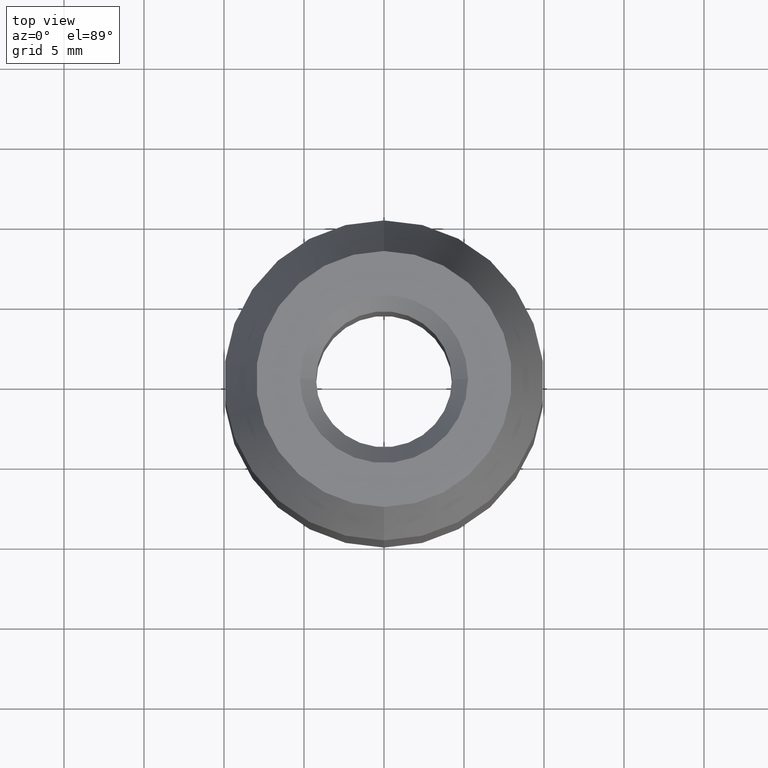
[diagram: clean part render]
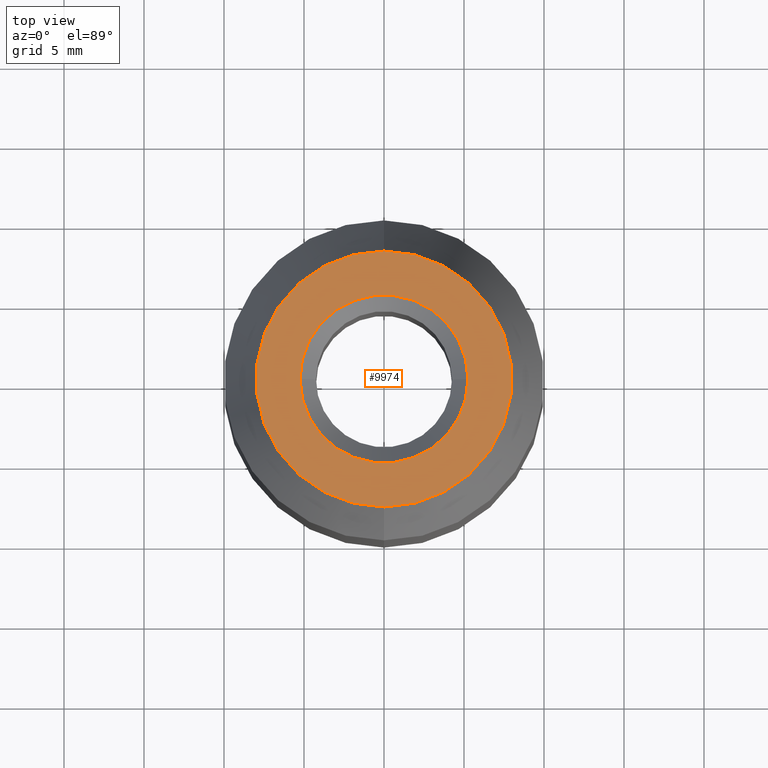
[diagram: same view with one face highlighted and labeled with its STEP entity id]
A machine part, top view. The second image highlights one B-rep face of the part: STEP entity #9974.
In plain terms, the highlighted planar face has unit normal (0, 0, -1).
Its self-contained STEP definition (entity closure, byte-faithful):
#58 = EDGE_LOOP ( 'NONE', ( #6355, #7590 ) ) ;
#657 = ORIENTED_EDGE ( 'NONE', *, *, #5404, .T. ) ;
#922 = EDGE_LOOP ( 'NONE', ( #657, #7589 ) ) ;
#939 = CIRCLE ( 'NONE', #10029, 5.250000000000018652 ) ;
#1013 = AXIS2_PLACEMENT_3D ( 'NONE', #8651, #8738, #11026 ) ;
#1137 = DIRECTION ( 'NONE',  ( 0.000000000000000000, -1.000000000000000000, 0.000000000000000000 ) ) ;
#1184 = DIRECTION ( 'NONE',  ( -0.000000000000000000, -2.139922160430262120E-32, 1.000000000000000000 ) ) ;
#1541 = CARTESIAN_POINT ( 'NONE',  ( -5.250000000000018652, 6.429395695523626833E-16, 18.00000000000000000 ) ) ;
#1771 = PLANE ( 'NONE',  #14392 ) ;
#2228 = VERTEX_POINT ( 'NONE', #12288 ) ;
#2392 = AXIS2_PLACEMENT_3D ( 'NONE', #10437, #9173, #2510 ) ;
#2510 = DIRECTION ( 'NONE',  ( 0.000000000000000000, 1.000000000000000000, 0.000000000000000000 ) ) ;
#4501 = VERTEX_POINT ( 'NONE', #1541 ) ;
#4630 = CARTESIAN_POINT ( 'NONE',  ( 0.000000000000000000, 7.999999999999996447, 18.00000000000000000 ) ) ;
#4810 = EDGE_CURVE ( 'NONE', #2228, #6974, #13608, .T. ) ;
#5210 = CARTESIAN_POINT ( 'NONE',  ( 0.000000000000000000, 7.999999999999996447, 18.00000000000000000 ) ) ;
#5404 = EDGE_CURVE ( 'NONE', #10343, #4501, #939, .T. ) ;
#5877 = DIRECTION ( 'NONE',  ( 0.000000000000000000, 2.139922160430262120E-32, -1.000000000000000000 ) ) ;
#6327 = DIRECTION ( 'NONE',  ( 0.000000000000000000, 2.139922160430262120E-32, -1.000000000000000000 ) ) ;
#6355 = ORIENTED_EDGE ( 'NONE', *, *, #7973, .T. ) ;
#6974 = VERTEX_POINT ( 'NONE', #4630 ) ;
#7589 = ORIENTED_EDGE ( 'NONE', *, *, #12573, .T. ) ;
#7590 = ORIENTED_EDGE ( 'NONE', *, *, #4810, .T. ) ;
#7973 = EDGE_CURVE ( 'NONE', #6974, #2228, #11745, .T. ) ;
#8300 = CIRCLE ( 'NONE', #2392, 5.250000000000018652 ) ;
#8651 = CARTESIAN_POINT ( 'NONE',  ( 0.000000000000000000, -3.851859888774471706E-31, 18.00000000000000000 ) ) ;
#8738 = DIRECTION ( 'NONE',  ( -0.000000000000000000, -2.139922160430262120E-32, 1.000000000000000000 ) ) ;
#8967 = CARTESIAN_POINT ( 'NONE',  ( 0.000000000000000000, -3.851859888774471706E-31, 18.00000000000000000 ) ) ;
#9173 = DIRECTION ( 'NONE',  ( 0.000000000000000000, 2.139922160430262120E-32, -1.000000000000000000 ) ) ;
#9974 = ADVANCED_FACE ( 'NONE', ( #12556, #10656 ), #1771, .F. ) ;
#10003 = CARTESIAN_POINT ( 'NONE',  ( 5.250000000000018652, 0.000000000000000000, 18.00000000000000000 ) ) ;
#10029 = AXIS2_PLACEMENT_3D ( 'NONE', #13419, #5877, #12326 ) ;
#10343 = VERTEX_POINT ( 'NONE', #10003 ) ;
#10437 = CARTESIAN_POINT ( 'NONE',  ( 0.000000000000000000, 0.000000000000000000, 18.00000000000000000 ) ) ;
#10656 = FACE_OUTER_BOUND ( 'NONE', #58, .T. ) ;
#11026 = DIRECTION ( 'NONE',  ( 0.000000000000000000, -1.000000000000000000, 0.000000000000000000 ) ) ;
#11343 = AXIS2_PLACEMENT_3D ( 'NONE', #8967, #1184, #1137 ) ;
#11745 = CIRCLE ( 'NONE', #1013, 7.999999999999996447 ) ;
#12288 = CARTESIAN_POINT ( 'NONE',  ( 1.102182119232617517E-15, -7.999999999999996447, 18.00000000000000000 ) ) ;
#12326 = DIRECTION ( 'NONE',  ( 0.000000000000000000, 1.000000000000000000, 0.000000000000000000 ) ) ;
#12556 = FACE_BOUND ( 'NONE', #922, .T. ) ;
#12573 = EDGE_CURVE ( 'NONE', #4501, #10343, #8300, .T. ) ;
#13419 = CARTESIAN_POINT ( 'NONE',  ( 0.000000000000000000, 0.000000000000000000, 18.00000000000000000 ) ) ;
#13608 = CIRCLE ( 'NONE', #11343, 7.999999999999996447 ) ;
#14073 = DIRECTION ( 'NONE',  ( 0.000000000000000000, 1.000000000000000000, 2.139922160430262120E-32 ) ) ;
#14392 = AXIS2_PLACEMENT_3D ( 'NONE', #5210, #6327, #14073 ) ;